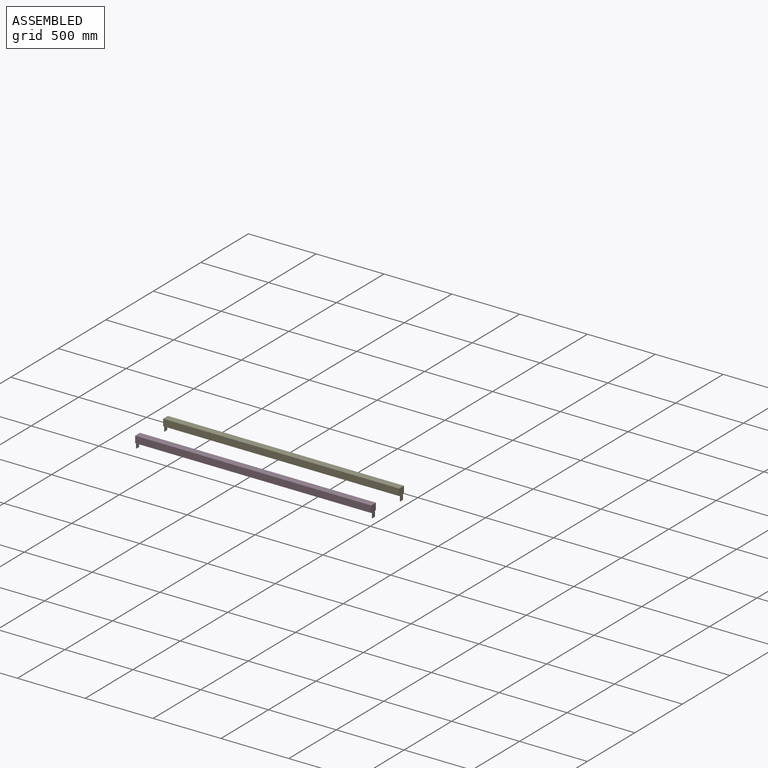
[diagram: assembled view]
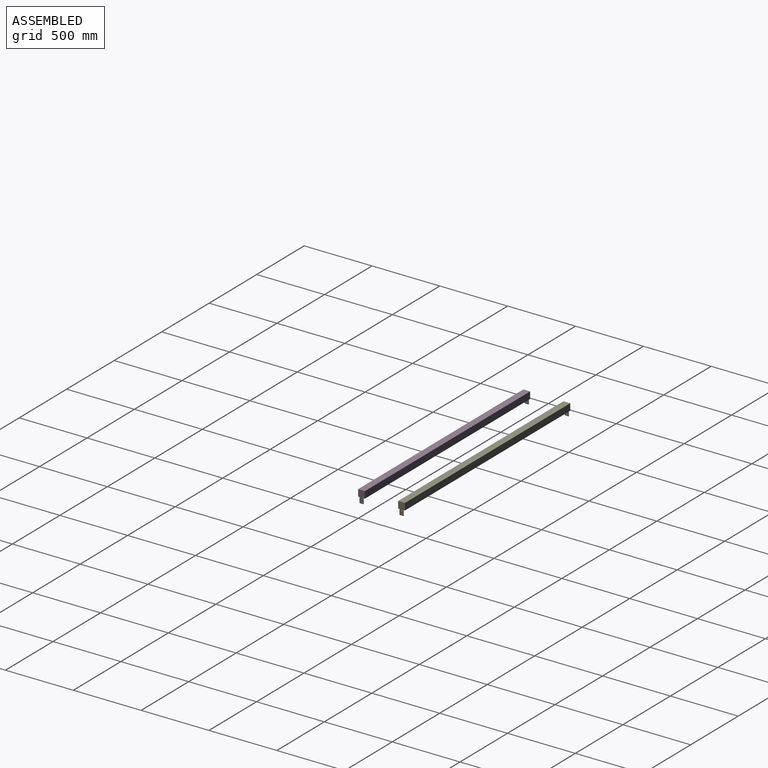
[diagram: assembled view, second angle]
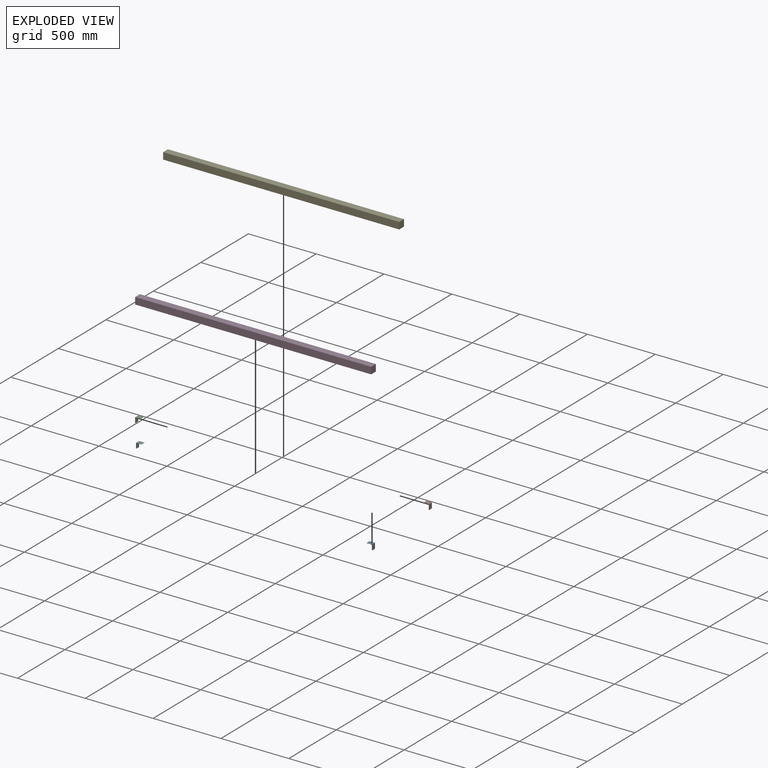
[diagram: exploded view]
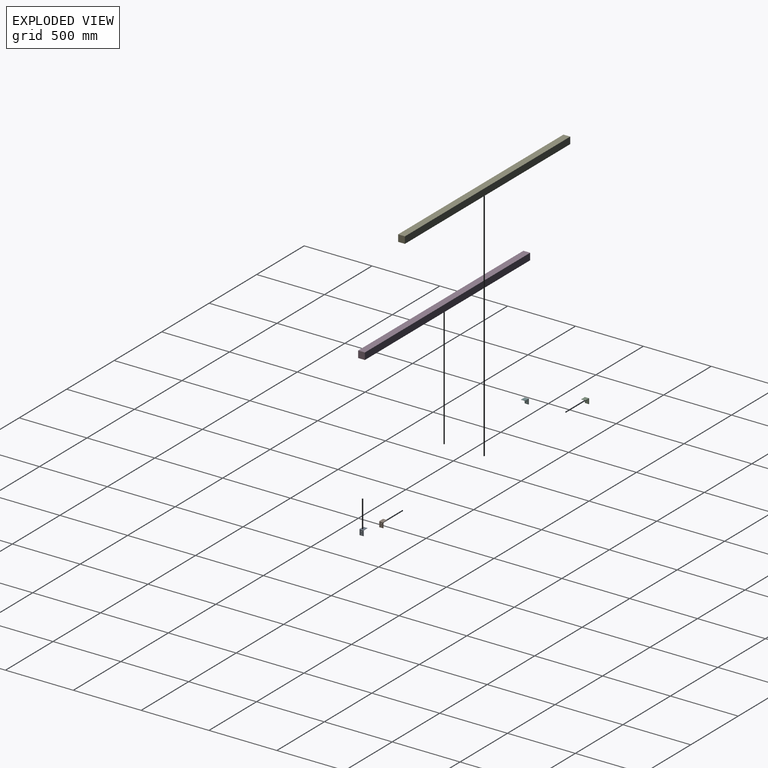
[diagram: exploded view, second angle]
ASSEMBLY  parts=6 mates=4
PART A: 20 faces, bbox 40x30x40 mm
  f0: plane 35x30mm, normal (0,0,-1), area 979.1mm2, adj f6,f7,f9,f10,f13,f15
  f1: plane 30x1mm, normal (1,0,0), area 30mm2, adj f2,f6,f7,f10
  f2: plane 38x30mm, normal (0,0,1), area 1121.8mm2, adj f1,f6,f7,f8,f12,f14
  f3: plane 38x30mm, normal (-1,0,0), area 1121.8mm2, adj f4,f6,f7,f8,f16,f18
  f4: plane 30x1mm, normal (0,0,-1), area 30mm2, adj f3,f6,f7,f11
  f5: plane 35x30mm, normal (1,0,0), area 979.1mm2, adj f6,f7,f9,f11,f17,f19
  f6: plane 40x40mm, normal (0,-1,0), area 155.6mm2, adj f0,f1,f2,f3,f4,f5,f8,f9
  f7: plane 40x40mm, normal (0,1,0), area 155.6mm2, adj f0,f1,f2,f3,f4,f5,f8,f9
  f8: cylinder r=2mm len=30mm, axis (0,1,0), area 94.2mm2, adj f2,f3,f6,f7
  f9: cylinder r=2mm len=30mm, axis (0,1,0), area 94.2mm2, adj f0,f5,f6,f7
  f10: cylinder r=1mm len=30mm, axis (0,1,0), area 47.1mm2, adj f0,f1,f6,f7
  f11: cylinder r=1mm len=30mm, axis (0,1,0), area 47.1mm2, adj f4,f5,f6,f7
  f12: cylinder r=1.7mm len=3.4mm, axis (0,0,-1), area 3.6mm2, adj f2,f13
  f13: cone r=1.7mm half-angle=45deg, axis (0,0,-1), area 37.3mm2, adj f0,f12
  f14: cylinder r=1.7mm len=3.4mm, axis (0,0,-1), area 3.6mm2, adj f2,f15
  f15: cone r=1.7mm half-angle=45deg, axis (0,0,-1), area 37.3mm2, adj f0,f14
  f16: cylinder r=1.7mm len=3.4mm, axis (1,0,0), area 3.6mm2, adj f3,f17
  f17: cone r=1.7mm half-angle=45deg, axis (1,0,0), area 37.3mm2, adj f5,f16
  f18: cylinder r=1.7mm len=3.4mm, axis (1,0,0), area 3.6mm2, adj f3,f19
  f19: cone r=1.7mm half-angle=45deg, axis (1,0,0), area 37.3mm2, adj f5,f18
PART B: same geometry as A
PART C: same geometry as A
PART D: 6 faces, bbox 1740x50x50 mm
  f0: plane 1740x50mm, normal (0,1,0), area 87000mm2, adj f1,f3,f4,f5
  f1: plane 50x50mm, normal (-1,0,0), area 2500mm2, adj f0,f2,f4,f5
  f2: plane 1740x50mm, normal (0,-1,0), area 87000mm2, adj f1,f3,f4,f5
  f3: plane 50x50mm, normal (1,0,0), area 2500mm2, adj f0,f2,f4,f5
  f4: plane 1740x50mm, normal (0,0,1), area 87000mm2, adj f0,f1,f2,f3
  f5: plane 1740x50mm, normal (0,0,-1), area 87000mm2, adj f0,f1,f2,f3
PART E: 6 faces, bbox 1740x50x50 mm
  f0: plane 50x50mm, normal (1,0,0), area 2500mm2, adj f1,f3,f4,f5
  f1: plane 1740x50mm, normal (0,1,0), area 87000mm2, adj f0,f2,f4,f5
  f2: plane 50x50mm, normal (-1,0,0), area 2500mm2, adj f1,f3,f4,f5
  f3: plane 1740x50mm, normal (0,-1,0), area 87000mm2, adj f0,f2,f4,f5
  f4: plane 1740x50mm, normal (0,0,1), area 87000mm2, adj f0,f1,f2,f3
  f5: plane 1740x50mm, normal (0,0,-1), area 87000mm2, adj f0,f1,f2,f3
PART F: same geometry as A
PLACE A rot(axis=(0,1,0),90deg) t=(1740,3191.6,0)mm
PLACE B rot(axis=(0,1,0),90deg) t=(1740,3486.6,0)mm
PLACE C rot(axis=(0.71,0,-0.71),180deg) t=(0,3486.6,0)mm
PLACE D t=(0,34.1,0)mm
PLACE E t=(0,34.1,0)mm
PLACE F rot(axis=(-0.71,0,0.71),180deg) t=(0,3191.6,0)mm
MATE fastened F.f3 <-> D.f5  axis (0,0,1) through (0,3191.6,0)mm
MATE fastened C.f3 <-> E.f5  axis (0,0,1) through (0,3486.6,0)mm
MATE fastened B.f3 <-> E.f5  axis (0,0,1) through (1740,3486.6,0)mm
MATE fastened A.f3 <-> D.f5  axis (0,0,1) through (1740,3191.6,0)mm
